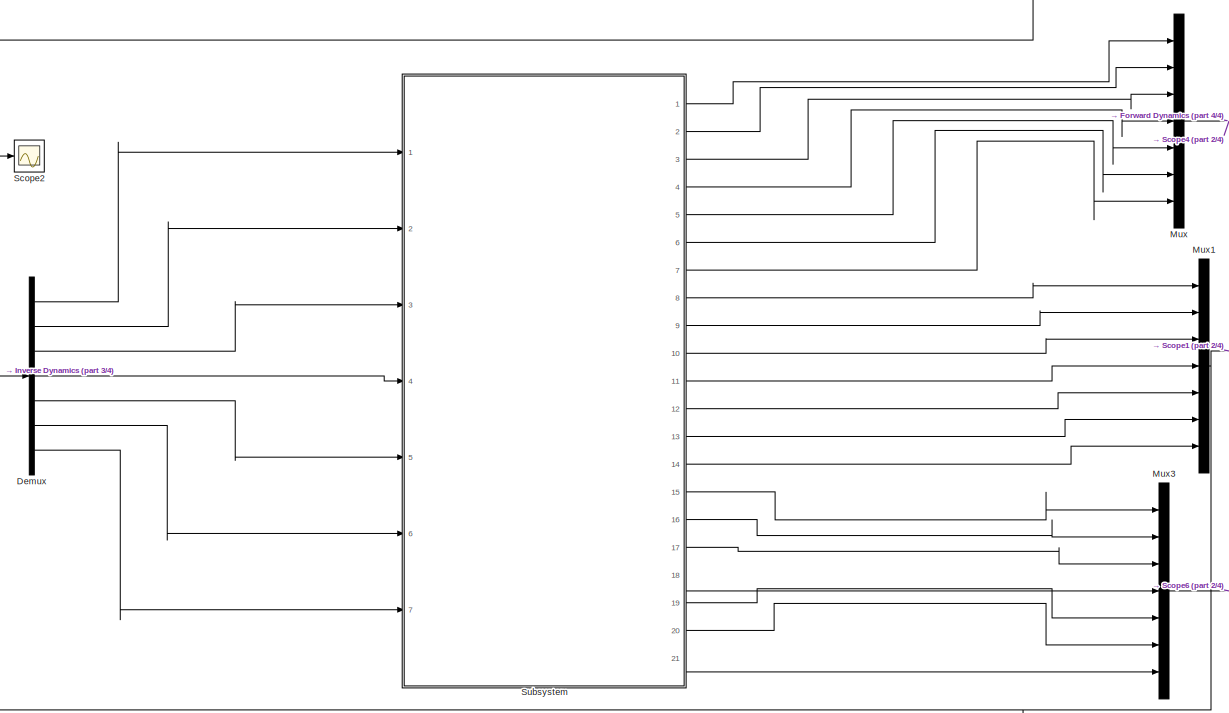
[diagram: root canvas - part 1/4, center side, full height]
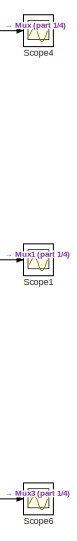
[diagram: root canvas - part 2/4, middle right region]
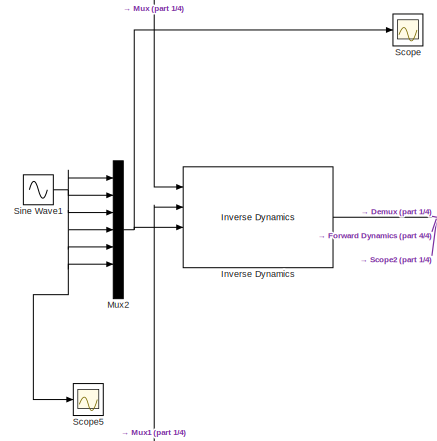
[diagram: root canvas - part 3/4, middle left region]
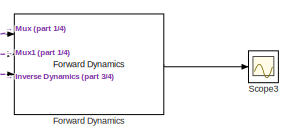
[diagram: root canvas - part 4/4, bottom right region]
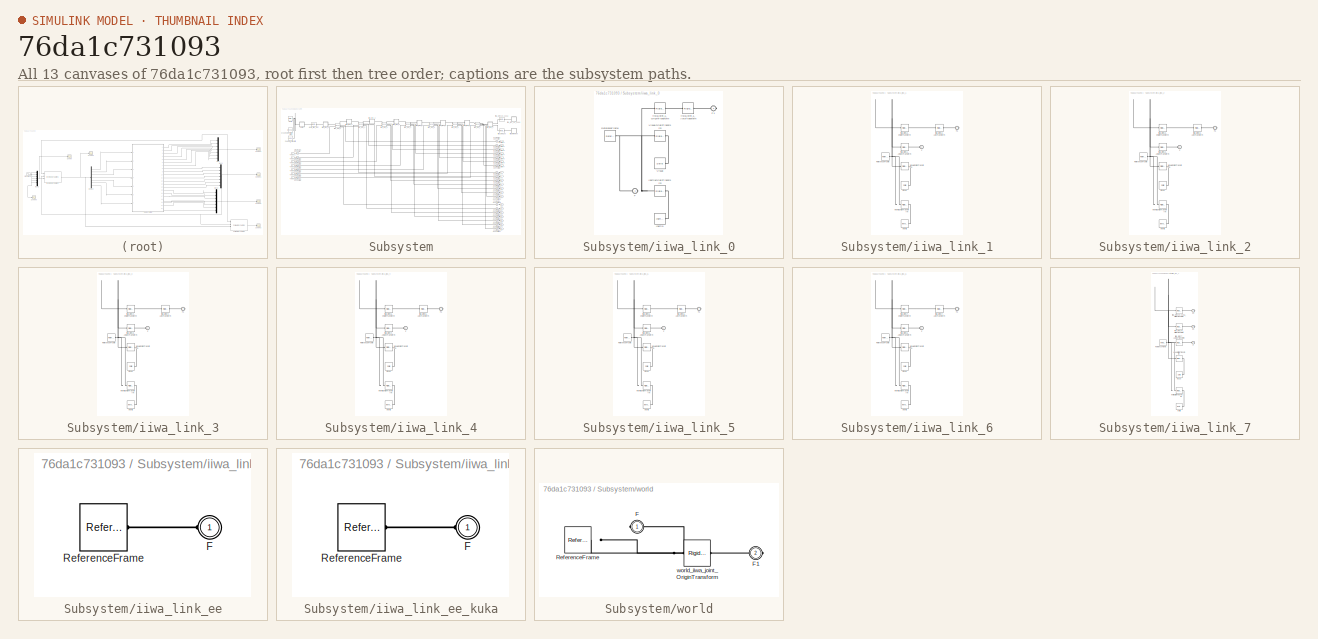
[diagram: thumbnail index - all 13 canvases of the model, root first then tree order]
MODEL slx_76da1c731093
KIND model
CONFIG AbsTol = auto
CONFIG EnableMultiTasking = off
CONFIG FixedStep = 0.01
CONFIG MaxStep = auto
CONFIG MinStep = auto
CONFIG RelTol = 1e-3
CONFIG SampleTimeConstraint = Unconstrained
CONFIG Solver = FixedStepAuto
CONFIG SolverName = FixedStepAuto
CONFIG StartTime = 0.0
CONFIG StopTime = 10.0
BLOCK [Demux] Demux
  DisplayOption = bar
  Outputs = 7
  Ports = [1, 7]
BLOCK [Reference] Forward Dynamics  REF=robotmaniplib/Forward Dynamics
  Ports = [4, 1]
  SourceBlock = robotmaniplib/Forward Dynamics
  SourceProductBaseCode = RO
  SourceProductName = Robotics System Toolbox
  SourceType = Forward Dynamics
BLOCK [Reference] Inverse Dynamics  REF=robotmaniplib/Inverse Dynamics
  Ports = [4, 1]
  SourceBlock = robotmaniplib/Inverse Dynamics
  SourceProductBaseCode = RO
  SourceProductName = Robotics System Toolbox
  SourceType = Inverse Dynamics
BLOCK [Mux] Mux
  DisplayOption = bar
  Inputs = 7
  Ports = [7, 1]
BLOCK [Mux] Mux1
  DisplayOption = bar
  Inputs = 7
  Ports = [7, 1]
BLOCK [Mux] Mux2
  DisplayOption = bar
  Inputs = 7
  Ports = [7, 1]
BLOCK [Mux] Mux3
  DisplayOption = bar
  Inputs = 7
  Ports = [7, 1]
BLOCK [Scope] Scope
  Floating = off
  NumInputPorts = 1
  Ports = [1]
  ScopeSpecificationString = Simulink.scopes.TimeScopeBlockCfg('CurrentConfiguration', extmgr.ConfigurationSet(extmgr.Configuration('Core','General UI',true),extmgr.Configuration('Core','Source UI',true),extmgr.Configuration('Sources','WiredSimulink',true,'DataLoggingVariableName','ScopeData1'),extmgr.Configuration('Visuals','Time Domain',true,'SerializedDisplays',{struct('MinYLimReal','-0.62499','MaxYLimReal','0.625','YLabel...<+1438ch>
BLOCK [Scope] Scope1
  Floating = off
  NumInputPorts = 1
  Ports = [1]
  ScopeSpecificationString = Simulink.scopes.TimeScopeBlockCfg('CurrentConfiguration', extmgr.ConfigurationSet(extmgr.Configuration('Core','General UI',true),extmgr.Configuration('Core','Source UI',true),extmgr.Configuration('Sources','WiredSimulink',true),extmgr.Configuration('Visuals','Time Domain',true,'SerializedDisplays',{struct('MinYLimReal','-0.025','MaxYLimReal','0.225','YLabelReal','','MinYLimMag','0.00000','MaxYLimM...<+1408ch>
BLOCK [Scope] Scope2
  Floating = off
  NumInputPorts = 1
  Ports = [1]
  ScopeSpecificationString = Simulink.scopes.TimeScopeBlockCfg('CurrentConfiguration', extmgr.ConfigurationSet(extmgr.Configuration('Core','General UI',true),extmgr.Configuration('Core','Source UI',true),extmgr.Configuration('Sources','WiredSimulink',true,'DataLoggingVariableName','ScopeData2'),extmgr.Configuration('Visuals','Time Domain',true,'SerializedDisplays',{struct('MinYLimReal','-9.24964','MaxYLimReal','1.24071','YLab...<+1503ch>
BLOCK [Scope] Scope3
  Floating = off
  NumInputPorts = 1
  Ports = [1]
  ScopeSpecificationString = Simulink.scopes.TimeScopeBlockCfg('CurrentConfiguration', extmgr.ConfigurationSet(extmgr.Configuration('Core','General UI',true),extmgr.Configuration('Core','Source UI',true),extmgr.Configuration('Sources','WiredSimulink',true,'DataLoggingVariableName','ScopeData3'),extmgr.Configuration('Visuals','Time Domain',true,'SerializedDisplays',{struct('MinYLimReal','-0.125','MaxYLimReal','0.125','YLabelRe...<+1675ch>
BLOCK [Scope] Scope4
  Floating = off
  NumInputPorts = 1
  Ports = [1]
  ScopeSpecificationString = Simulink.scopes.TimeScopeBlockCfg('CurrentConfiguration', extmgr.ConfigurationSet(extmgr.Configuration('Core','General UI',true),extmgr.Configuration('Core','Source UI',true),extmgr.Configuration('Sources','WiredSimulink',true,'DataLoggingVariableName','ScopeData4'),extmgr.Configuration('Visuals','Time Domain',true,'SerializedDisplays',{struct('MinYLimReal','-0.12566','MaxYLimReal','1.1309','YLabe...<+1450ch>
BLOCK [Scope] Scope5
  Floating = off
  NumInputPorts = 1
  Ports = [1]
  ScopeSpecificationString = Simulink.scopes.TimeScopeBlockCfg('CurrentConfiguration', extmgr.ConfigurationSet(extmgr.Configuration('Core','General UI',true),extmgr.Configuration('Core','Source UI',true),extmgr.Configuration('Sources','WiredSimulink',true,'DataLoggingVariableName','ScopeData5'),extmgr.Configuration('Visuals','Time Domain',true,'SerializedDisplays',{struct('MinYLimReal','-0.125','MaxYLimReal','0.125','YLabelRe...<+1357ch>
BLOCK [Scope] Scope6
  Floating = off
  NumInputPorts = 1
  Ports = [1]
  ScopeSpecificationString = Simulink.scopes.TimeScopeBlockCfg('CurrentConfiguration', extmgr.ConfigurationSet(extmgr.Configuration('Core','General UI',true),extmgr.Configuration('Core','Source UI',true),extmgr.Configuration('Sources','WiredSimulink',true,'DataLoggingVariableName','ScopeData1'),extmgr.Configuration('Visuals','Time Domain',true,'SerializedDisplays',{struct('MinYLimReal','-0.62499','MaxYLimReal','0.625','YLabel...<+1502ch>
BLOCK [Sin] Sine Wave1
  Amplitude = 0.5
  Frequency = 5
  Ports = [0, 1]
  SampleTime = 0
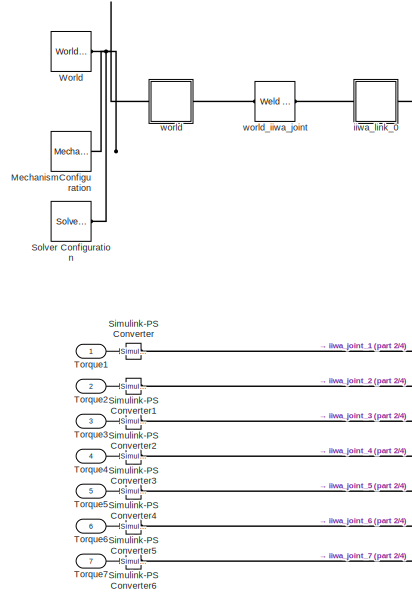
[diagram: Subsystem - part 1/4, top left region]
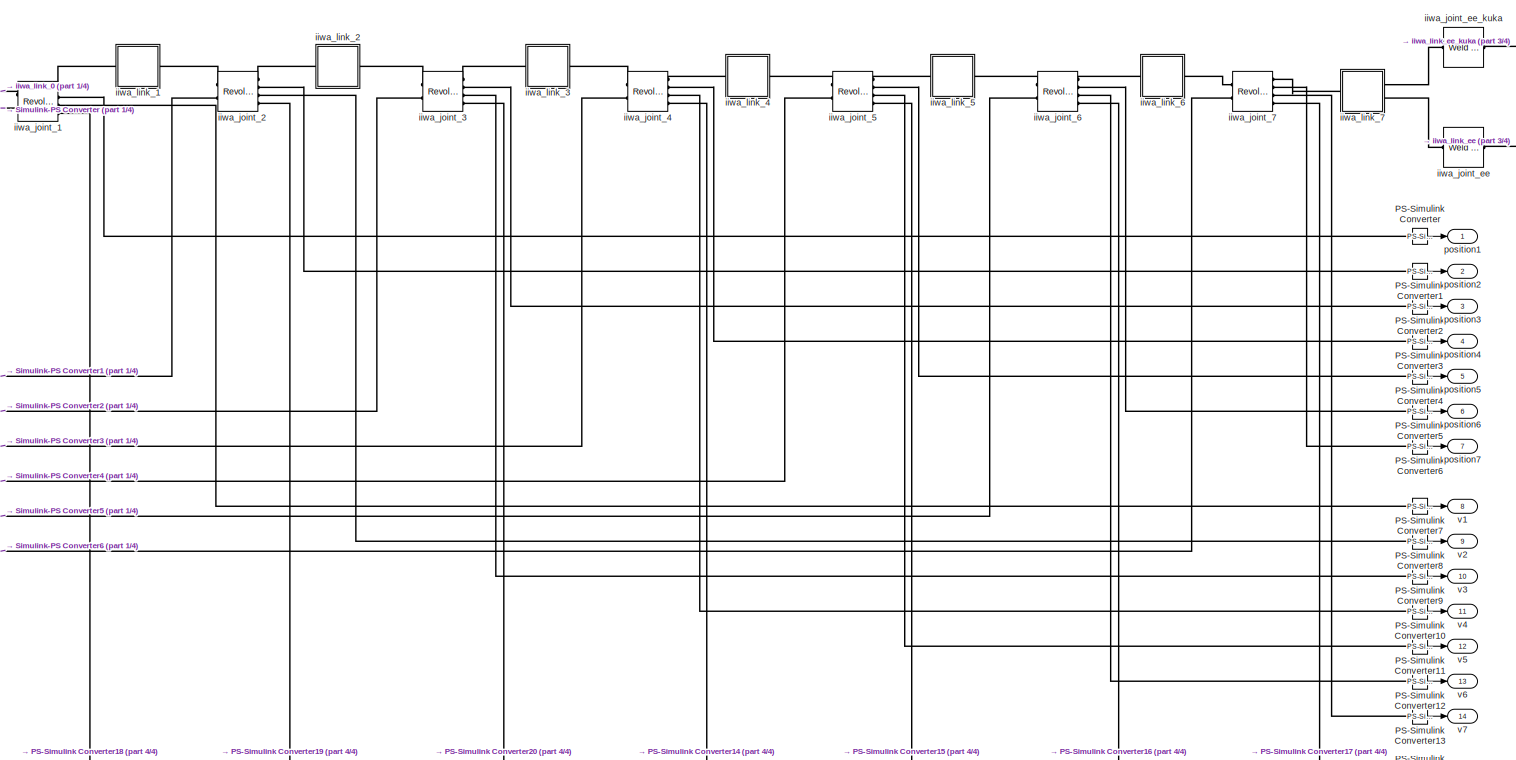
[diagram: Subsystem - part 2/4, full width, middle band]
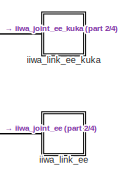
[diagram: Subsystem - part 3/4, top right region]
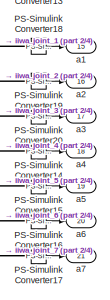
[diagram: Subsystem - part 4/4, bottom right region]
BLOCK [SubSystem] Subsystem
  Ports = [7, 21]
  RequestExecContextInheritance = off
BLOCK [Reference] Subsystem/MechanismConfiguration  REF=sm_lib/Utilities/Mechanism
Configuration
  Ports = [0, 0, 0, 0, 0, 0, 1]
  SourceBlock = sm_lib/Utilities/Mechanism\nConfiguration
  SourceProductBaseCode = MS
  SourceProductName = Simscape Multibody
  SourceType = Mechanism\nConfiguration
BLOCK [Reference] Subsystem/PS-Simulink Converter  REF=nesl_utility/PS-Simulink
Converter
  Ports = [0, 1, 0, 0, 0, 1]
  SourceBlock = nesl_utility/PS-Simulink\nConverter
  SourceProductBaseCode = SS
  SourceProductName = Simscape
  SourceType = PS-Simulink\nConverter
BLOCK [Reference] Subsystem/PS-Simulink Converter1  REF=nesl_utility/PS-Simulink
Converter
  Ports = [0, 1, 0, 0, 0, 1]
  SourceBlock = nesl_utility/PS-Simulink\nConverter
  SourceProductBaseCode = SS
  SourceProductName = Simscape
  SourceType = PS-Simulink\nConverter
BLOCK [Reference] Subsystem/PS-Simulink Converter10  REF=nesl_utility/PS-Simulink
Converter
  Ports = [0, 1, 0, 0, 0, 1]
  SourceBlock = nesl_utility/PS-Simulink\nConverter
  SourceProductBaseCode = SS
  SourceProductName = Simscape
  SourceType = PS-Simulink\nConverter
BLOCK [Reference] Subsystem/PS-Simulink Converter11  REF=nesl_utility/PS-Simulink
Converter
  Ports = [0, 1, 0, 0, 0, 1]
  SourceBlock = nesl_utility/PS-Simulink\nConverter
  SourceProductBaseCode = SS
  SourceProductName = Simscape
  SourceType = PS-Simulink\nConverter
BLOCK [Reference] Subsystem/PS-Simulink Converter12  REF=nesl_utility/PS-Simulink
Converter
  Ports = [0, 1, 0, 0, 0, 1]
  SourceBlock = nesl_utility/PS-Simulink\nConverter
  SourceProductBaseCode = SS
  SourceProductName = Simscape
  SourceType = PS-Simulink\nConverter
BLOCK [Reference] Subsystem/PS-Simulink Converter13  REF=nesl_utility/PS-Simulink
Converter
  Ports = [0, 1, 0, 0, 0, 1]
  SourceBlock = nesl_utility/PS-Simulink\nConverter
  SourceProductBaseCode = SS
  SourceProductName = Simscape
  SourceType = PS-Simulink\nConverter
BLOCK [Reference] Subsystem/PS-Simulink Converter14  REF=nesl_utility/PS-Simulink
Converter
  Ports = [0, 1, 0, 0, 0, 1]
  SourceBlock = nesl_utility/PS-Simulink\nConverter
  SourceProductBaseCode = SS
  SourceProductName = Simscape
  SourceType = PS-Simulink\nConverter
BLOCK [Reference] Subsystem/PS-Simulink Converter15  REF=nesl_utility/PS-Simulink
Converter
  Ports = [0, 1, 0, 0, 0, 1]
  SourceBlock = nesl_utility/PS-Simulink\nConverter
  SourceProductBaseCode = SS
  SourceProductName = Simscape
  SourceType = PS-Simulink\nConverter
BLOCK [Reference] Subsystem/PS-Simulink Converter16  REF=nesl_utility/PS-Simulink
Converter
  Ports = [0, 1, 0, 0, 0, 1]
  SourceBlock = nesl_utility/PS-Simulink\nConverter
  SourceProductBaseCode = SS
  SourceProductName = Simscape
  SourceType = PS-Simulink\nConverter
BLOCK [Reference] Subsystem/PS-Simulink Converter17  REF=nesl_utility/PS-Simulink
Converter
  Ports = [0, 1, 0, 0, 0, 1]
  SourceBlock = nesl_utility/PS-Simulink\nConverter
  SourceProductBaseCode = SS
  SourceProductName = Simscape
  SourceType = PS-Simulink\nConverter
BLOCK [Reference] Subsystem/PS-Simulink Converter18  REF=nesl_utility/PS-Simulink
Converter
  Ports = [0, 1, 0, 0, 0, 1]
  SourceBlock = nesl_utility/PS-Simulink\nConverter
  SourceProductBaseCode = SS
  SourceProductName = Simscape
  SourceType = PS-Simulink\nConverter
BLOCK [Reference] Subsystem/PS-Simulink Converter19  REF=nesl_utility/PS-Simulink
Converter
  Ports = [0, 1, 0, 0, 0, 1]
  SourceBlock = nesl_utility/PS-Simulink\nConverter
  SourceProductBaseCode = SS
  SourceProductName = Simscape
  SourceType = PS-Simulink\nConverter
BLOCK [Reference] Subsystem/PS-Simulink Converter2  REF=nesl_utility/PS-Simulink
Converter
  Ports = [0, 1, 0, 0, 0, 1]
  SourceBlock = nesl_utility/PS-Simulink\nConverter
  SourceProductBaseCode = SS
  SourceProductName = Simscape
  SourceType = PS-Simulink\nConverter
BLOCK [Reference] Subsystem/PS-Simulink Converter20  REF=nesl_utility/PS-Simulink
Converter
  Ports = [0, 1, 0, 0, 0, 1]
  SourceBlock = nesl_utility/PS-Simulink\nConverter
  SourceProductBaseCode = SS
  SourceProductName = Simscape
  SourceType = PS-Simulink\nConverter
BLOCK [Reference] Subsystem/PS-Simulink Converter3  REF=nesl_utility/PS-Simulink
Converter
  Ports = [0, 1, 0, 0, 0, 1]
  SourceBlock = nesl_utility/PS-Simulink\nConverter
  SourceProductBaseCode = SS
  SourceProductName = Simscape
  SourceType = PS-Simulink\nConverter
BLOCK [Reference] Subsystem/PS-Simulink Converter4  REF=nesl_utility/PS-Simulink
Converter
  Ports = [0, 1, 0, 0, 0, 1]
  SourceBlock = nesl_utility/PS-Simulink\nConverter
  SourceProductBaseCode = SS
  SourceProductName = Simscape
  SourceType = PS-Simulink\nConverter
BLOCK [Reference] Subsystem/PS-Simulink Converter5  REF=nesl_utility/PS-Simulink
Converter
  Ports = [0, 1, 0, 0, 0, 1]
  SourceBlock = nesl_utility/PS-Simulink\nConverter
  SourceProductBaseCode = SS
  SourceProductName = Simscape
  SourceType = PS-Simulink\nConverter
BLOCK [Reference] Subsystem/PS-Simulink Converter6  REF=nesl_utility/PS-Simulink
Converter
  Ports = [0, 1, 0, 0, 0, 1]
  SourceBlock = nesl_utility/PS-Simulink\nConverter
  SourceProductBaseCode = SS
  SourceProductName = Simscape
  SourceType = PS-Simulink\nConverter
BLOCK [Reference] Subsystem/PS-Simulink Converter7  REF=nesl_utility/PS-Simulink
Converter
  Ports = [0, 1, 0, 0, 0, 1]
  SourceBlock = nesl_utility/PS-Simulink\nConverter
  SourceProductBaseCode = SS
  SourceProductName = Simscape
  SourceType = PS-Simulink\nConverter
BLOCK [Reference] Subsystem/PS-Simulink Converter8  REF=nesl_utility/PS-Simulink
Converter
  Ports = [0, 1, 0, 0, 0, 1]
  SourceBlock = nesl_utility/PS-Simulink\nConverter
  SourceProductBaseCode = SS
  SourceProductName = Simscape
  SourceType = PS-Simulink\nConverter
BLOCK [Reference] Subsystem/PS-Simulink Converter9  REF=nesl_utility/PS-Simulink
Converter
  Ports = [0, 1, 0, 0, 0, 1]
  SourceBlock = nesl_utility/PS-Simulink\nConverter
  SourceProductBaseCode = SS
  SourceProductName = Simscape
  SourceType = PS-Simulink\nConverter
BLOCK [Reference] Subsystem/Simulink-PS Converter  REF=nesl_utility/Simulink-PS
Converter
  Ports = [1, 0, 0, 0, 0, 0, 1]
  SourceBlock = nesl_utility/Simulink-PS\nConverter
  SourceProductBaseCode = SS
  SourceProductName = Simscape
  SourceType = Simulink-PS\nConverter
BLOCK [Reference] Subsystem/Simulink-PS Converter1  REF=nesl_utility/Simulink-PS
Converter
  Ports = [1, 0, 0, 0, 0, 0, 1]
  SourceBlock = nesl_utility/Simulink-PS\nConverter
  SourceProductBaseCode = SS
  SourceProductName = Simscape
  SourceType = Simulink-PS\nConverter
BLOCK [Reference] Subsystem/Simulink-PS Converter2  REF=nesl_utility/Simulink-PS
Converter
  Ports = [1, 0, 0, 0, 0, 0, 1]
  SourceBlock = nesl_utility/Simulink-PS\nConverter
  SourceProductBaseCode = SS
  SourceProductName = Simscape
  SourceType = Simulink-PS\nConverter
BLOCK [Reference] Subsystem/Simulink-PS Converter3  REF=nesl_utility/Simulink-PS
Converter
  Ports = [1, 0, 0, 0, 0, 0, 1]
  SourceBlock = nesl_utility/Simulink-PS\nConverter
  SourceProductBaseCode = SS
  SourceProductName = Simscape
  SourceType = Simulink-PS\nConverter
BLOCK [Reference] Subsystem/Simulink-PS Converter4  REF=nesl_utility/Simulink-PS
Converter
  Ports = [1, 0, 0, 0, 0, 0, 1]
  SourceBlock = nesl_utility/Simulink-PS\nConverter
  SourceProductBaseCode = SS
  SourceProductName = Simscape
  SourceType = Simulink-PS\nConverter
BLOCK [Reference] Subsystem/Simulink-PS Converter5  REF=nesl_utility/Simulink-PS
Converter
  Ports = [1, 0, 0, 0, 0, 0, 1]
  SourceBlock = nesl_utility/Simulink-PS\nConverter
  SourceProductBaseCode = SS
  SourceProductName = Simscape
  SourceType = Simulink-PS\nConverter
BLOCK [Reference] Subsystem/Simulink-PS Converter6  REF=nesl_utility/Simulink-PS
Converter
  Ports = [1, 0, 0, 0, 0, 0, 1]
  SourceBlock = nesl_utility/Simulink-PS\nConverter
  SourceProductBaseCode = SS
  SourceProductName = Simscape
  SourceType = Simulink-PS\nConverter
BLOCK [Reference] Subsystem/Solver Configuration  REF=nesl_utility/Solver
Configuration
  Ports = [0, 0, 0, 0, 0, 0, 1]
  SourceBlock = nesl_utility/Solver\nConfiguration
  SourceProductBaseCode = SS
  SourceProductName = Simscape
  SourceType = Solver\nConfiguration
BLOCK [Inport] Subsystem/Torque1
  IconDisplay = Port number
BLOCK [Inport] Subsystem/Torque2
  IconDisplay = Port number
  Port = 2
BLOCK [Inport] Subsystem/Torque3
  IconDisplay = Port number
  Port = 3
BLOCK [Inport] Subsystem/Torque4
  IconDisplay = Port number
  Port = 4
BLOCK [Inport] Subsystem/Torque5
  IconDisplay = Port number
  Port = 5
BLOCK [Inport] Subsystem/Torque6
  IconDisplay = Port number
  Port = 6
BLOCK [Inport] Subsystem/Torque7
  IconDisplay = Port number
  Port = 7
BLOCK [Reference] Subsystem/World  REF=sm_lib/Frames and
Transforms/World Frame
  Ports = [0, 0, 0, 0, 0, 0, 1]
  SourceBlock = sm_lib/Frames and\nTransforms/World Frame
  SourceProductBaseCode = MS
  SourceProductName = Simscape Multibody
  SourceType = World Frame
BLOCK [Outport] Subsystem/a1
  IconDisplay = Port number
  Port = 15
BLOCK [Outport] Subsystem/a2
  IconDisplay = Port number
  Port = 16
BLOCK [Outport] Subsystem/a3
  IconDisplay = Port number
  Port = 17
BLOCK [Outport] Subsystem/a4
  IconDisplay = Port number
  Port = 18
BLOCK [Outport] Subsystem/a5
  IconDisplay = Port number
  Port = 19
BLOCK [Outport] Subsystem/a6
  IconDisplay = Port number
  Port = 20
BLOCK [Outport] Subsystem/a7
  IconDisplay = Port number
  Port = 21
BLOCK [Reference] Subsystem/iiwa_joint_1  REF=sm_lib/Joints/Revolute Joint
  Ports = [0, 0, 0, 0, 0, 2, 4]
  SourceBlock = sm_lib/Joints/Revolute Joint
  SourceProductBaseCode = MS
  SourceProductName = Simscape Multibody
  SourceType = Revolute Joint
BLOCK [Reference] Subsystem/iiwa_joint_2  REF=sm_lib/Joints/Revolute Joint
  Ports = [0, 0, 0, 0, 0, 2, 4]
  SourceBlock = sm_lib/Joints/Revolute Joint
  SourceProductBaseCode = MS
  SourceProductName = Simscape Multibody
  SourceType = Revolute Joint
BLOCK [Reference] Subsystem/iiwa_joint_3  REF=sm_lib/Joints/Revolute Joint
  Ports = [0, 0, 0, 0, 0, 2, 4]
  SourceBlock = sm_lib/Joints/Revolute Joint
  SourceProductBaseCode = MS
  SourceProductName = Simscape Multibody
  SourceType = Revolute Joint
BLOCK [Reference] Subsystem/iiwa_joint_4  REF=sm_lib/Joints/Revolute Joint
  Ports = [0, 0, 0, 0, 0, 2, 4]
  SourceBlock = sm_lib/Joints/Revolute Joint
  SourceProductBaseCode = MS
  SourceProductName = Simscape Multibody
  SourceType = Revolute Joint
BLOCK [Reference] Subsystem/iiwa_joint_5  REF=sm_lib/Joints/Revolute Joint
  Ports = [0, 0, 0, 0, 0, 2, 4]
  SourceBlock = sm_lib/Joints/Revolute Joint
  SourceProductBaseCode = MS
  SourceProductName = Simscape Multibody
  SourceType = Revolute Joint
BLOCK [Reference] Subsystem/iiwa_joint_6  REF=sm_lib/Joints/Revolute Joint
  Ports = [0, 0, 0, 0, 0, 2, 4]
  SourceBlock = sm_lib/Joints/Revolute Joint
  SourceProductBaseCode = MS
  SourceProductName = Simscape Multibody
  SourceType = Revolute Joint
BLOCK [Reference] Subsystem/iiwa_joint_7  REF=sm_lib/Joints/Revolute Joint
  Ports = [0, 0, 0, 0, 0, 2, 4]
  SourceBlock = sm_lib/Joints/Revolute Joint
  SourceProductBaseCode = MS
  SourceProductName = Simscape Multibody
  SourceType = Revolute Joint
BLOCK [Reference] Subsystem/iiwa_joint_ee  REF=sm_lib/Joints/Weld Joint
  Ports = [0, 0, 0, 0, 0, 1, 1]
  SourceBlock = sm_lib/Joints/Weld Joint
  SourceProductBaseCode = MS
  SourceProductName = Simscape Multibody
  SourceType = Weld Joint
BLOCK [Reference] Subsystem/iiwa_joint_ee_kuka  REF=sm_lib/Joints/Weld Joint
  Ports = [0, 0, 0, 0, 0, 1, 1]
  SourceBlock = sm_lib/Joints/Weld Joint
  SourceProductBaseCode = MS
  SourceProductName = Simscape Multibody
  SourceType = Weld Joint
BLOCK [SubSystem] Subsystem/iiwa_link_0
  Ports = [0, 0, 0, 0, 0, 1, 1]
  RequestExecContextInheritance = off
BLOCK [PMIOPort] Subsystem/iiwa_link_0/F
  Side = Left
BLOCK [PMIOPort] Subsystem/iiwa_link_0/F1
  Port = 2
  Side = Right
BLOCK [Reference] Subsystem/iiwa_link_0/Inertia  REF=sm_lib/Body Elements/Inertia
  Ports = [0, 0, 0, 0, 0, 0, 1]
  SourceBlock = sm_lib/Body Elements/Inertia
  SourceProductBaseCode = MS
  SourceProductName = Simscape Multibody
  SourceType = Inertia
BLOCK [Reference] Subsystem/iiwa_link_0/InertiaOriginTransform  REF=sm_lib/Frames and
Transforms/Rigid
Transform
  Ports = [0, 0, 0, 0, 0, 1, 1]
  SourceBlock = sm_lib/Frames and\nTransforms/Rigid\nTransform
  SourceProductBaseCode = MS
  SourceProductName = Simscape Multibody
  SourceType = Rigid\nTransform
BLOCK [Reference] Subsystem/iiwa_link_0/ReferenceFrame  REF=sm_lib/Frames and
Transforms/Reference
Frame
  Ports = [0, 0, 0, 0, 0, 0, 1]
  SourceBlock = sm_lib/Frames and\nTransforms/Reference\nFrame
  SourceProductBaseCode = MS
  SourceProductName = Simscape Multibody
  SourceType = Reference\nFrame
BLOCK [Reference] Subsystem/iiwa_link_0/Visual  REF=sm_lib/Body Elements/Solid
  Ports = [0, 0, 0, 0, 0, 0, 1]
  SourceBlock = sm_lib/Body Elements/Solid
  SourceProductBaseCode = MS
  SourceProductName = Simscape Multibody
  SourceType = File Solid
BLOCK [Reference] Subsystem/iiwa_link_0/VisualOriginTransform  REF=sm_lib/Frames and
Transforms/Rigid
Transform
  Ports = [0, 0, 0, 0, 0, 1, 1]
  SourceBlock = sm_lib/Frames and\nTransforms/Rigid\nTransform
  SourceProductBaseCode = MS
  SourceProductName = Simscape Multibody
  SourceType = Rigid\nTransform
BLOCK [Reference] Subsystem/iiwa_link_0/iiwa_joint_1_AxisTransform  REF=sm_lib/Frames and
Transforms/Rigid
Transform
  Ports = [0, 0, 0, 0, 0, 1, 1]
  SourceBlock = sm_lib/Frames and\nTransforms/Rigid\nTransform
  SourceProductBaseCode = MS
  SourceProductName = Simscape Multibody
  SourceType = Rigid\nTransform
BLOCK [Reference] Subsystem/iiwa_link_0/iiwa_joint_1_OriginTransform  REF=sm_lib/Frames and
Transforms/Rigid
Transform
  Ports = [0, 0, 0, 0, 0, 1, 1]
  SourceBlock = sm_lib/Frames and\nTransforms/Rigid\nTransform
  SourceProductBaseCode = MS
  SourceProductName = Simscape Multibody
  SourceType = Rigid\nTransform
BLOCK [SubSystem] Subsystem/iiwa_link_1
  Ports = [0, 0, 0, 0, 0, 1, 1]
  RequestExecContextInheritance = off
BLOCK [PMIOPort] Subsystem/iiwa_link_1/F
  Side = Left
BLOCK [PMIOPort] Subsystem/iiwa_link_1/F1
  Port = 2
  Side = Right
BLOCK [Reference] Subsystem/iiwa_link_1/Inertia  REF=sm_lib/Body Elements/Inertia
  Ports = [0, 0, 0, 0, 0, 0, 1]
  SourceBlock = sm_lib/Body Elements/Inertia
  SourceProductBaseCode = MS
  SourceProductName = Simscape Multibody
  SourceType = Inertia
BLOCK [Reference] Subsystem/iiwa_link_1/InertiaOriginTransform  REF=sm_lib/Frames and
Transforms/Rigid
Transform
  Ports = [0, 0, 0, 0, 0, 1, 1]
  SourceBlock = sm_lib/Frames and\nTransforms/Rigid\nTransform
  SourceProductBaseCode = MS
  SourceProductName = Simscape Multibody
  SourceType = Rigid\nTransform
BLOCK [Reference] Subsystem/iiwa_link_1/ReferenceFrame  REF=sm_lib/Frames and
Transforms/Reference
Frame
  Ports = [0, 0, 0, 0, 0, 0, 1]
  SourceBlock = sm_lib/Frames and\nTransforms/Reference\nFrame
  SourceProductBaseCode = MS
  SourceProductName = Simscape Multibody
  SourceType = Reference\nFrame
BLOCK [Reference] Subsystem/iiwa_link_1/Visual  REF=sm_lib/Body Elements/Solid
  Ports = [0, 0, 0, 0, 0, 0, 1]
  SourceBlock = sm_lib/Body Elements/Solid
  SourceProductBaseCode = MS
  SourceProductName = Simscape Multibody
  SourceType = File Solid
BLOCK [Reference] Subsystem/iiwa_link_1/VisualOriginTransform  REF=sm_lib/Frames and
Transforms/Rigid
Transform
  Ports = [0, 0, 0, 0, 0, 1, 1]
  SourceBlock = sm_lib/Frames and\nTransforms/Rigid\nTransform
  SourceProductBaseCode = MS
  SourceProductName = Simscape Multibody
  SourceType = Rigid\nTransform
BLOCK [Reference] Subsystem/iiwa_link_1/iiwa_joint_1_AxisInvTransform  REF=sm_lib/Frames and
Transforms/Rigid
Transform
  Ports = [0, 0, 0, 0, 0, 1, 1]
  SourceBlock = sm_lib/Frames and\nTransforms/Rigid\nTransform
  SourceProductBaseCode = MS
  SourceProductName = Simscape Multibody
  SourceType = Rigid\nTransform
BLOCK [Reference] Subsystem/iiwa_link_1/iiwa_joint_2_AxisTransform  REF=sm_lib/Frames and
Transforms/Rigid
Transform
  Ports = [0, 0, 0, 0, 0, 1, 1]
  SourceBlock = sm_lib/Frames and\nTransforms/Rigid\nTransform
  SourceProductBaseCode = MS
  SourceProductName = Simscape Multibody
  SourceType = Rigid\nTransform
BLOCK [Reference] Subsystem/iiwa_link_1/iiwa_joint_2_OriginTransform  REF=sm_lib/Frames and
Transforms/Rigid
Transform
  Ports = [0, 0, 0, 0, 0, 1, 1]
  SourceBlock = sm_lib/Frames and\nTransforms/Rigid\nTransform
  SourceProductBaseCode = MS
  SourceProductName = Simscape Multibody
  SourceType = Rigid\nTransform
BLOCK [SubSystem] Subsystem/iiwa_link_2
  Ports = [0, 0, 0, 0, 0, 1, 1]
  RequestExecContextInheritance = off
BLOCK [PMIOPort] Subsystem/iiwa_link_2/F
  Side = Left
BLOCK [PMIOPort] Subsystem/iiwa_link_2/F1
  Port = 2
  Side = Right
BLOCK [Reference] Subsystem/iiwa_link_2/Inertia  REF=sm_lib/Body Elements/Inertia
  Ports = [0, 0, 0, 0, 0, 0, 1]
  SourceBlock = sm_lib/Body Elements/Inertia
  SourceProductBaseCode = MS
  SourceProductName = Simscape Multibody
  SourceType = Inertia
BLOCK [Reference] Subsystem/iiwa_link_2/InertiaOriginTransform  REF=sm_lib/Frames and
Transforms/Rigid
Transform
  Ports = [0, 0, 0, 0, 0, 1, 1]
  SourceBlock = sm_lib/Frames and\nTransforms/Rigid\nTransform
  SourceProductBaseCode = MS
  SourceProductName = Simscape Multibody
  SourceType = Rigid\nTransform
BLOCK [Reference] Subsystem/iiwa_link_2/ReferenceFrame  REF=sm_lib/Frames and
Transforms/Reference
Frame
  Ports = [0, 0, 0, 0, 0, 0, 1]
  SourceBlock = sm_lib/Frames and\nTransforms/Reference\nFrame
  SourceProductBaseCode = MS
  SourceProductName = Simscape Multibody
  SourceType = Reference\nFrame
BLOCK [Reference] Subsystem/iiwa_link_2/Visual  REF=sm_lib/Body Elements/Solid
  Ports = [0, 0, 0, 0, 0, 0, 1]
  SourceBlock = sm_lib/Body Elements/Solid
  SourceProductBaseCode = MS
  SourceProductName = Simscape Multibody
  SourceType = File Solid
BLOCK [Reference] Subsystem/iiwa_link_2/VisualOriginTransform  REF=sm_lib/Frames and
Transforms/Rigid
Transform
  Ports = [0, 0, 0, 0, 0, 1, 1]
  SourceBlock = sm_lib/Frames and\nTransforms/Rigid\nTransform
  SourceProductBaseCode = MS
  SourceProductName = Simscape Multibody
  SourceType = Rigid\nTransform
BLOCK [Reference] Subsystem/iiwa_link_2/iiwa_joint_2_AxisInvTransform  REF=sm_lib/Frames and
Transforms/Rigid
Transform
  Ports = [0, 0, 0, 0, 0, 1, 1]
  SourceBlock = sm_lib/Frames and\nTransforms/Rigid\nTransform
  SourceProductBaseCode = MS
  SourceProductName = Simscape Multibody
  SourceType = Rigid\nTransform
BLOCK [Reference] Subsystem/iiwa_link_2/iiwa_joint_3_AxisTransform  REF=sm_lib/Frames and
Transforms/Rigid
Transform
  Ports = [0, 0, 0, 0, 0, 1, 1]
  SourceBlock = sm_lib/Frames and\nTransforms/Rigid\nTransform
  SourceProductBaseCode = MS
  SourceProductName = Simscape Multibody
  SourceType = Rigid\nTransform
BLOCK [Reference] Subsystem/iiwa_link_2/iiwa_joint_3_OriginTransform  REF=sm_lib/Frames and
Transforms/Rigid
Transform
  Ports = [0, 0, 0, 0, 0, 1, 1]
  SourceBlock = sm_lib/Frames and\nTransforms/Rigid\nTransform
  SourceProductBaseCode = MS
  SourceProductName = Simscape Multibody
  SourceType = Rigid\nTransform
BLOCK [SubSystem] Subsystem/iiwa_link_3
  Ports = [0, 0, 0, 0, 0, 1, 1]
  RequestExecContextInheritance = off
BLOCK [PMIOPort] Subsystem/iiwa_link_3/F
  Side = Left
BLOCK [PMIOPort] Subsystem/iiwa_link_3/F1
  Port = 2
  Side = Right
BLOCK [Reference] Subsystem/iiwa_link_3/Inertia  REF=sm_lib/Body Elements/Inertia
  Ports = [0, 0, 0, 0, 0, 0, 1]
  SourceBlock = sm_lib/Body Elements/Inertia
  SourceProductBaseCode = MS
  SourceProductName = Simscape Multibody
  SourceType = Inertia
BLOCK [Reference] Subsystem/iiwa_link_3/InertiaOriginTransform  REF=sm_lib/Frames and
Transforms/Rigid
Transform
  Ports = [0, 0, 0, 0, 0, 1, 1]
  SourceBlock = sm_lib/Frames and\nTransforms/Rigid\nTransform
  SourceProductBaseCode = MS
  SourceProductName = Simscape Multibody
  SourceType = Rigid\nTransform
BLOCK [Reference] Subsystem/iiwa_link_3/ReferenceFrame  REF=sm_lib/Frames and
Transforms/Reference
Frame
  Ports = [0, 0, 0, 0, 0, 0, 1]
  SourceBlock = sm_lib/Frames and\nTransforms/Reference\nFrame
  SourceProductBaseCode = MS
  SourceProductName = Simscape Multibody
  SourceType = Reference\nFrame
BLOCK [Reference] Subsystem/iiwa_link_3/Visual  REF=sm_lib/Body Elements/Solid
  Ports = [0, 0, 0, 0, 0, 0, 1]
  SourceBlock = sm_lib/Body Elements/Solid
  SourceProductBaseCode = MS
  SourceProductName = Simscape Multibody
  SourceType = File Solid
BLOCK [Reference] Subsystem/iiwa_link_3/VisualOriginTransform  REF=sm_lib/Frames and
Transforms/Rigid
Transform
  Ports = [0, 0, 0, 0, 0, 1, 1]
  SourceBlock = sm_lib/Frames and\nTransforms/Rigid\nTransform
  SourceProductBaseCode = MS
  SourceProductName = Simscape Multibody
  SourceType = Rigid\nTransform
BLOCK [Reference] Subsystem/iiwa_link_3/iiwa_joint_3_AxisInvTransform  REF=sm_lib/Frames and
Transforms/Rigid
Transform
  Ports = [0, 0, 0, 0, 0, 1, 1]
  SourceBlock = sm_lib/Frames and\nTransforms/Rigid\nTransform
  SourceProductBaseCode = MS
  SourceProductName = Simscape Multibody
  SourceType = Rigid\nTransform
BLOCK [Reference] Subsystem/iiwa_link_3/iiwa_joint_4_AxisTransform  REF=sm_lib/Frames and
Transforms/Rigid
Transform
  Ports = [0, 0, 0, 0, 0, 1, 1]
  SourceBlock = sm_lib/Frames and\nTransforms/Rigid\nTransform
  SourceProductBaseCode = MS
  SourceProductName = Simscape Multibody
  SourceType = Rigid\nTransform
BLOCK [Reference] Subsystem/iiwa_link_3/iiwa_joint_4_OriginTransform  REF=sm_lib/Frames and
Transforms/Rigid
Transform
  Ports = [0, 0, 0, 0, 0, 1, 1]
  SourceBlock = sm_lib/Frames and\nTransforms/Rigid\nTransform
  SourceProductBaseCode = MS
  SourceProductName = Simscape Multibody
  SourceType = Rigid\nTransform
BLOCK [SubSystem] Subsystem/iiwa_link_4
  Ports = [0, 0, 0, 0, 0, 1, 1]
  RequestExecContextInheritance = off
BLOCK [PMIOPort] Subsystem/iiwa_link_4/F
  Side = Left
BLOCK [PMIOPort] Subsystem/iiwa_link_4/F1
  Port = 2
  Side = Right
BLOCK [Reference] Subsystem/iiwa_link_4/Inertia  REF=sm_lib/Body Elements/Inertia
  Ports = [0, 0, 0, 0, 0, 0, 1]
  SourceBlock = sm_lib/Body Elements/Inertia
  SourceProductBaseCode = MS
  SourceProductName = Simscape Multibody
  SourceType = Inertia
BLOCK [Reference] Subsystem/iiwa_link_4/InertiaOriginTransform  REF=sm_lib/Frames and
Transforms/Rigid
Transform
  Ports = [0, 0, 0, 0, 0, 1, 1]
  SourceBlock = sm_lib/Frames and\nTransforms/Rigid\nTransform
  SourceProductBaseCode = MS
  SourceProductName = Simscape Multibody
  SourceType = Rigid\nTransform
BLOCK [Reference] Subsystem/iiwa_link_4/ReferenceFrame  REF=sm_lib/Frames and
Transforms/Reference
Frame
  Ports = [0, 0, 0, 0, 0, 0, 1]
  SourceBlock = sm_lib/Frames and\nTransforms/Reference\nFrame
  SourceProductBaseCode = MS
  SourceProductName = Simscape Multibody
  SourceType = Reference\nFrame
BLOCK [Reference] Subsystem/iiwa_link_4/Visual  REF=sm_lib/Body Elements/Solid
  Ports = [0, 0, 0, 0, 0, 0, 1]
  SourceBlock = sm_lib/Body Elements/Solid
  SourceProductBaseCode = MS
  SourceProductName = Simscape Multibody
  SourceType = File Solid
BLOCK [Reference] Subsystem/iiwa_link_4/VisualOriginTransform  REF=sm_lib/Frames and
Transforms/Rigid
Transform
  Ports = [0, 0, 0, 0, 0, 1, 1]
  SourceBlock = sm_lib/Frames and\nTransforms/Rigid\nTransform
  SourceProductBaseCode = MS
  SourceProductName = Simscape Multibody
  SourceType = Rigid\nTransform
BLOCK [Reference] Subsystem/iiwa_link_4/iiwa_joint_4_AxisInvTransform  REF=sm_lib/Frames and
Transforms/Rigid
Transform
  Ports = [0, 0, 0, 0, 0, 1, 1]
  SourceBlock = sm_lib/Frames and\nTransforms/Rigid\nTransform
  SourceProductBaseCode = MS
  SourceProductName = Simscape Multibody
  SourceType = Rigid\nTransform
BLOCK [Reference] Subsystem/iiwa_link_4/iiwa_joint_5_AxisTransform  REF=sm_lib/Frames and
Transforms/Rigid
Transform
  Ports = [0, 0, 0, 0, 0, 1, 1]
  SourceBlock = sm_lib/Frames and\nTransforms/Rigid\nTransform
  SourceProductBaseCode = MS
  SourceProductName = Simscape Multibody
  SourceType = Rigid\nTransform
BLOCK [Reference] Subsystem/iiwa_link_4/iiwa_joint_5_OriginTransform  REF=sm_lib/Frames and
Transforms/Rigid
Transform
  Ports = [0, 0, 0, 0, 0, 1, 1]
  SourceBlock = sm_lib/Frames and\nTransforms/Rigid\nTransform
  SourceProductBaseCode = MS
  SourceProductName = Simscape Multibody
  SourceType = Rigid\nTransform
BLOCK [SubSystem] Subsystem/iiwa_link_5
  Ports = [0, 0, 0, 0, 0, 1, 1]
  RequestExecContextInheritance = off
BLOCK [PMIOPort] Subsystem/iiwa_link_5/F
  Side = Left
BLOCK [PMIOPort] Subsystem/iiwa_link_5/F1
  Port = 2
  Side = Right
BLOCK [Reference] Subsystem/iiwa_link_5/Inertia  REF=sm_lib/Body Elements/Inertia
  Ports = [0, 0, 0, 0, 0, 0, 1]
  SourceBlock = sm_lib/Body Elements/Inertia
  SourceProductBaseCode = MS
  SourceProductName = Simscape Multibody
  SourceType = Inertia
BLOCK [Reference] Subsystem/iiwa_link_5/InertiaOriginTransform  REF=sm_lib/Frames and
Transforms/Rigid
Transform
  Ports = [0, 0, 0, 0, 0, 1, 1]
  SourceBlock = sm_lib/Frames and\nTransforms/Rigid\nTransform
  SourceProductBaseCode = MS
  SourceProductName = Simscape Multibody
  SourceType = Rigid\nTransform
BLOCK [Reference] Subsystem/iiwa_link_5/ReferenceFrame  REF=sm_lib/Frames and
Transforms/Reference
Frame
  Ports = [0, 0, 0, 0, 0, 0, 1]
  SourceBlock = sm_lib/Frames and\nTransforms/Reference\nFrame
  SourceProductBaseCode = MS
  SourceProductName = Simscape Multibody
  SourceType = Reference\nFrame
BLOCK [Reference] Subsystem/iiwa_link_5/Visual  REF=sm_lib/Body Elements/Solid
  Ports = [0, 0, 0, 0, 0, 0, 1]
  SourceBlock = sm_lib/Body Elements/Solid
  SourceProductBaseCode = MS
  SourceProductName = Simscape Multibody
  SourceType = File Solid
BLOCK [Reference] Subsystem/iiwa_link_5/VisualOriginTransform  REF=sm_lib/Frames and
Transforms/Rigid
Transform
  Ports = [0, 0, 0, 0, 0, 1, 1]
  SourceBlock = sm_lib/Frames and\nTransforms/Rigid\nTransform
  SourceProductBaseCode = MS
  SourceProductName = Simscape Multibody
  SourceType = Rigid\nTransform
BLOCK [Reference] Subsystem/iiwa_link_5/iiwa_joint_5_AxisInvTransform  REF=sm_lib/Frames and
Transforms/Rigid
Transform
  Ports = [0, 0, 0, 0, 0, 1, 1]
  SourceBlock = sm_lib/Frames and\nTransforms/Rigid\nTransform
  SourceProductBaseCode = MS
  SourceProductName = Simscape Multibody
  SourceType = Rigid\nTransform
BLOCK [Reference] Subsystem/iiwa_link_5/iiwa_joint_6_AxisTransform  REF=sm_lib/Frames and
Transforms/Rigid
Transform
  Ports = [0, 0, 0, 0, 0, 1, 1]
  SourceBlock = sm_lib/Frames and\nTransforms/Rigid\nTransform
  SourceProductBaseCode = MS
  SourceProductName = Simscape Multibody
  SourceType = Rigid\nTransform
BLOCK [Reference] Subsystem/iiwa_link_5/iiwa_joint_6_OriginTransform  REF=sm_lib/Frames and
Transforms/Rigid
Transform
  Ports = [0, 0, 0, 0, 0, 1, 1]
  SourceBlock = sm_lib/Frames and\nTransforms/Rigid\nTransform
  SourceProductBaseCode = MS
  SourceProductName = Simscape Multibody
  SourceType = Rigid\nTransform
BLOCK [SubSystem] Subsystem/iiwa_link_6
  Ports = [0, 0, 0, 0, 0, 1, 1]
  RequestExecContextInheritance = off
BLOCK [PMIOPort] Subsystem/iiwa_link_6/F
  Side = Left
BLOCK [PMIOPort] Subsystem/iiwa_link_6/F1
  Port = 2
  Side = Right
BLOCK [Reference] Subsystem/iiwa_link_6/Inertia  REF=sm_lib/Body Elements/Inertia
  Ports = [0, 0, 0, 0, 0, 0, 1]
  SourceBlock = sm_lib/Body Elements/Inertia
  SourceProductBaseCode = MS
  SourceProductName = Simscape Multibody
  SourceType = Inertia
BLOCK [Reference] Subsystem/iiwa_link_6/InertiaOriginTransform  REF=sm_lib/Frames and
Transforms/Rigid
Transform
  Ports = [0, 0, 0, 0, 0, 1, 1]
  SourceBlock = sm_lib/Frames and\nTransforms/Rigid\nTransform
  SourceProductBaseCode = MS
  SourceProductName = Simscape Multibody
  SourceType = Rigid\nTransform
BLOCK [Reference] Subsystem/iiwa_link_6/ReferenceFrame  REF=sm_lib/Frames and
Transforms/Reference
Frame
  Ports = [0, 0, 0, 0, 0, 0, 1]
  SourceBlock = sm_lib/Frames and\nTransforms/Reference\nFrame
  SourceProductBaseCode = MS
  SourceProductName = Simscape Multibody
  SourceType = Reference\nFrame
BLOCK [Reference] Subsystem/iiwa_link_6/Visual  REF=sm_lib/Body Elements/Solid
  Ports = [0, 0, 0, 0, 0, 0, 1]
  SourceBlock = sm_lib/Body Elements/Solid
  SourceProductBaseCode = MS
  SourceProductName = Simscape Multibody
  SourceType = File Solid
BLOCK [Reference] Subsystem/iiwa_link_6/VisualOriginTransform  REF=sm_lib/Frames and
Transforms/Rigid
Transform
  Ports = [0, 0, 0, 0, 0, 1, 1]
  SourceBlock = sm_lib/Frames and\nTransforms/Rigid\nTransform
  SourceProductBaseCode = MS
  SourceProductName = Simscape Multibody
  SourceType = Rigid\nTransform
BLOCK [Reference] Subsystem/iiwa_link_6/iiwa_joint_6_AxisInvTransform  REF=sm_lib/Frames and
Transforms/Rigid
Transform
  Ports = [0, 0, 0, 0, 0, 1, 1]
  SourceBlock = sm_lib/Frames and\nTransforms/Rigid\nTransform
  SourceProductBaseCode = MS
  SourceProductName = Simscape Multibody
  SourceType = Rigid\nTransform
BLOCK [Reference] Subsystem/iiwa_link_6/iiwa_joint_7_AxisTransform  REF=sm_lib/Frames and
Transforms/Rigid
Transform
  Ports = [0, 0, 0, 0, 0, 1, 1]
  SourceBlock = sm_lib/Frames and\nTransforms/Rigid\nTransform
  SourceProductBaseCode = MS
  SourceProductName = Simscape Multibody
  SourceType = Rigid\nTransform
BLOCK [Reference] Subsystem/iiwa_link_6/iiwa_joint_7_OriginTransform  REF=sm_lib/Frames and
Transforms/Rigid
Transform
  Ports = [0, 0, 0, 0, 0, 1, 1]
  SourceBlock = sm_lib/Frames and\nTransforms/Rigid\nTransform
  SourceProductBaseCode = MS
  SourceProductName = Simscape Multibody
  SourceType = Rigid\nTransform
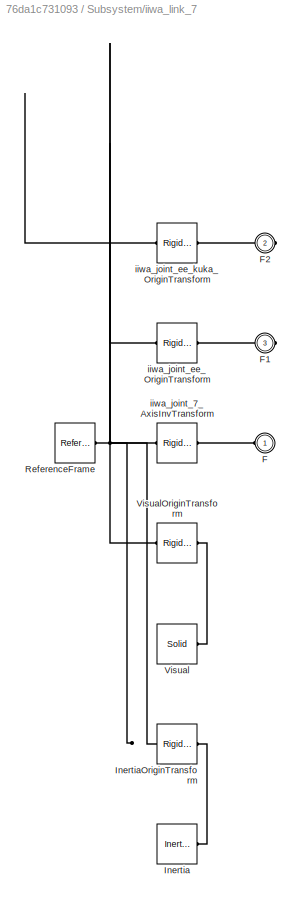
BLOCK [SubSystem] Subsystem/iiwa_link_7
  Ports = [0, 0, 0, 0, 0, 1, 2]
  RequestExecContextInheritance = off
BLOCK [PMIOPort] Subsystem/iiwa_link_7/F
  Side = Left
BLOCK [PMIOPort] Subsystem/iiwa_link_7/F1
  Port = 3
  Side = Right
BLOCK [PMIOPort] Subsystem/iiwa_link_7/F2
  Port = 2
  Side = Right
BLOCK [Reference] Subsystem/iiwa_link_7/Inertia  REF=sm_lib/Body Elements/Inertia
  Ports = [0, 0, 0, 0, 0, 0, 1]
  SourceBlock = sm_lib/Body Elements/Inertia
  SourceProductBaseCode = MS
  SourceProductName = Simscape Multibody
  SourceType = Inertia
BLOCK [Reference] Subsystem/iiwa_link_7/InertiaOriginTransform  REF=sm_lib/Frames and
Transforms/Rigid
Transform
  Ports = [0, 0, 0, 0, 0, 1, 1]
  SourceBlock = sm_lib/Frames and\nTransforms/Rigid\nTransform
  SourceProductBaseCode = MS
  SourceProductName = Simscape Multibody
  SourceType = Rigid\nTransform
BLOCK [Reference] Subsystem/iiwa_link_7/ReferenceFrame  REF=sm_lib/Frames and
Transforms/Reference
Frame
  Ports = [0, 0, 0, 0, 0, 0, 1]
  SourceBlock = sm_lib/Frames and\nTransforms/Reference\nFrame
  SourceProductBaseCode = MS
  SourceProductName = Simscape Multibody
  SourceType = Reference\nFrame
BLOCK [Reference] Subsystem/iiwa_link_7/Visual  REF=sm_lib/Body Elements/Solid
  Ports = [0, 0, 0, 0, 0, 0, 1]
  SourceBlock = sm_lib/Body Elements/Solid
  SourceProductBaseCode = MS
  SourceProductName = Simscape Multibody
  SourceType = File Solid
BLOCK [Reference] Subsystem/iiwa_link_7/VisualOriginTransform  REF=sm_lib/Frames and
Transforms/Rigid
Transform
  Ports = [0, 0, 0, 0, 0, 1, 1]
  SourceBlock = sm_lib/Frames and\nTransforms/Rigid\nTransform
  SourceProductBaseCode = MS
  SourceProductName = Simscape Multibody
  SourceType = Rigid\nTransform
BLOCK [Reference] Subsystem/iiwa_link_7/iiwa_joint_7_AxisInvTransform  REF=sm_lib/Frames and
Transforms/Rigid
Transform
  Ports = [0, 0, 0, 0, 0, 1, 1]
  SourceBlock = sm_lib/Frames and\nTransforms/Rigid\nTransform
  SourceProductBaseCode = MS
  SourceProductName = Simscape Multibody
  SourceType = Rigid\nTransform
BLOCK [Reference] Subsystem/iiwa_link_7/iiwa_joint_ee_OriginTransform  REF=sm_lib/Frames and
Transforms/Rigid
Transform
  Ports = [0, 0, 0, 0, 0, 1, 1]
  SourceBlock = sm_lib/Frames and\nTransforms/Rigid\nTransform
  SourceProductBaseCode = MS
  SourceProductName = Simscape Multibody
  SourceType = Rigid\nTransform
BLOCK [Reference] Subsystem/iiwa_link_7/iiwa_joint_ee_kuka_OriginTransform  REF=sm_lib/Frames and
Transforms/Rigid
Transform
  Ports = [0, 0, 0, 0, 0, 1, 1]
  SourceBlock = sm_lib/Frames and\nTransforms/Rigid\nTransform
  SourceProductBaseCode = MS
  SourceProductName = Simscape Multibody
  SourceType = Rigid\nTransform
BLOCK [SubSystem] Subsystem/iiwa_link_ee
  Ports = [0, 0, 0, 0, 0, 1]
  RequestExecContextInheritance = off
BLOCK [PMIOPort] Subsystem/iiwa_link_ee/F
  Side = Left
BLOCK [Reference] Subsystem/iiwa_link_ee/ReferenceFrame  REF=sm_lib/Frames and
Transforms/Reference
Frame
  Ports = [0, 0, 0, 0, 0, 0, 1]
  SourceBlock = sm_lib/Frames and\nTransforms/Reference\nFrame
  SourceProductBaseCode = MS
  SourceProductName = Simscape Multibody
  SourceType = Reference\nFrame
BLOCK [SubSystem] Subsystem/iiwa_link_ee_kuka
  Ports = [0, 0, 0, 0, 0, 1]
  RequestExecContextInheritance = off
BLOCK [PMIOPort] Subsystem/iiwa_link_ee_kuka/F
  Side = Left
BLOCK [Reference] Subsystem/iiwa_link_ee_kuka/ReferenceFrame  REF=sm_lib/Frames and
Transforms/Reference
Frame
  Ports = [0, 0, 0, 0, 0, 0, 1]
  SourceBlock = sm_lib/Frames and\nTransforms/Reference\nFrame
  SourceProductBaseCode = MS
  SourceProductName = Simscape Multibody
  SourceType = Reference\nFrame
BLOCK [Outport] Subsystem/position1
  IconDisplay = Port number
BLOCK [Outport] Subsystem/position2
  IconDisplay = Port number
  Port = 2
BLOCK [Outport] Subsystem/position3
  IconDisplay = Port number
  Port = 3
BLOCK [Outport] Subsystem/position4
  IconDisplay = Port number
  Port = 4
BLOCK [Outport] Subsystem/position5
  IconDisplay = Port number
  Port = 5
BLOCK [Outport] Subsystem/position6
  IconDisplay = Port number
  Port = 6
BLOCK [Outport] Subsystem/position7
  IconDisplay = Port number
  Port = 7
BLOCK [Outport] Subsystem/v1
  IconDisplay = Port number
  Port = 8
BLOCK [Outport] Subsystem/v2
  IconDisplay = Port number
  Port = 9
BLOCK [Outport] Subsystem/v3
  IconDisplay = Port number
  Port = 10
BLOCK [Outport] Subsystem/v4
  IconDisplay = Port number
  Port = 11
BLOCK [Outport] Subsystem/v5
  IconDisplay = Port number
  Port = 12
BLOCK [Outport] Subsystem/v6
  IconDisplay = Port number
  Port = 13
BLOCK [Outport] Subsystem/v7
  IconDisplay = Port number
  Port = 14
BLOCK [SubSystem] Subsystem/world
  Ports = [0, 0, 0, 0, 0, 1, 1]
  RequestExecContextInheritance = off
BLOCK [PMIOPort] Subsystem/world/F
  Side = Left
BLOCK [PMIOPort] Subsystem/world/F1
  Port = 2
  Side = Right
BLOCK [Reference] Subsystem/world/ReferenceFrame  REF=sm_lib/Frames and
Transforms/Reference
Frame
  Ports = [0, 0, 0, 0, 0, 0, 1]
  SourceBlock = sm_lib/Frames and\nTransforms/Reference\nFrame
  SourceProductBaseCode = MS
  SourceProductName = Simscape Multibody
  SourceType = Reference\nFrame
BLOCK [Reference] Subsystem/world/world_iiwa_joint_OriginTransform  REF=sm_lib/Frames and
Transforms/Rigid
Transform
  Ports = [0, 0, 0, 0, 0, 1, 1]
  SourceBlock = sm_lib/Frames and\nTransforms/Rigid\nTransform
  SourceProductBaseCode = MS
  SourceProductName = Simscape Multibody
  SourceType = Rigid\nTransform
BLOCK [Reference] Subsystem/world_iiwa_joint  REF=sm_lib/Joints/Weld Joint
  Ports = [0, 0, 0, 0, 0, 1, 1]
  SourceBlock = sm_lib/Joints/Weld Joint
  SourceProductBaseCode = MS
  SourceProductName = Simscape Multibody
  SourceType = Weld Joint
LINE Demux:1 -> Subsystem:1
LINE Demux:2 -> Subsystem:2
LINE Demux:3 -> Subsystem:3
LINE Demux:4 -> Subsystem:4
LINE Demux:5 -> Subsystem:5
LINE Demux:6 -> Subsystem:6
LINE Demux:7 -> Subsystem:7
LINE Forward Dynamics:1 -> Scope3:1
NET Inverse Dynamics:1 -> Demux:1, Forward Dynamics:3, Scope2:1
NET Mux1:1 -> Forward Dynamics:2, Inverse Dynamics:2, Scope1:1
NET Mux2:1 -> Inverse Dynamics:3, Scope:1
LINE Mux3:1 -> Scope6:1
NET Mux:1 -> Forward Dynamics:1, Inverse Dynamics:1, Scope4:1
NET Sine Wave1:1 -> Mux2:1, Mux2:2, Mux2:3, Mux2:4, Mux2:5, Mux2:6, Scope5:1
LINE Subsystem/PS-Simulink Converter10:1 -> Subsystem/v4:1
LINE Subsystem/PS-Simulink Converter11:1 -> Subsystem/v5:1
LINE Subsystem/PS-Simulink Converter12:1 -> Subsystem/v6:1
LINE Subsystem/PS-Simulink Converter13:1 -> Subsystem/v7:1
LINE Subsystem/PS-Simulink Converter14:1 -> Subsystem/a4:1
LINE Subsystem/PS-Simulink Converter15:1 -> Subsystem/a5:1
LINE Subsystem/PS-Simulink Converter16:1 -> Subsystem/a6:1
LINE Subsystem/PS-Simulink Converter17:1 -> Subsystem/a7:1
LINE Subsystem/PS-Simulink Converter18:1 -> Subsystem/a1:1
LINE Subsystem/PS-Simulink Converter19:1 -> Subsystem/a2:1
LINE Subsystem/PS-Simulink Converter1:1 -> Subsystem/position2:1
LINE Subsystem/PS-Simulink Converter20:1 -> Subsystem/a3:1
LINE Subsystem/PS-Simulink Converter2:1 -> Subsystem/position3:1
LINE Subsystem/PS-Simulink Converter3:1 -> Subsystem/position4:1
LINE Subsystem/PS-Simulink Converter4:1 -> Subsystem/position5:1
LINE Subsystem/PS-Simulink Converter5:1 -> Subsystem/position6:1
LINE Subsystem/PS-Simulink Converter6:1 -> Subsystem/position7:1
LINE Subsystem/PS-Simulink Converter7:1 -> Subsystem/v1:1
LINE Subsystem/PS-Simulink Converter8:1 -> Subsystem/v2:1
LINE Subsystem/PS-Simulink Converter9:1 -> Subsystem/v3:1
LINE Subsystem/PS-Simulink Converter:1 -> Subsystem/position1:1
LINE Subsystem/Torque1:1 -> Subsystem/Simulink-PS Converter:1
LINE Subsystem/Torque2:1 -> Subsystem/Simulink-PS Converter1:1
LINE Subsystem/Torque3:1 -> Subsystem/Simulink-PS Converter2:1
LINE Subsystem/Torque4:1 -> Subsystem/Simulink-PS Converter3:1
LINE Subsystem/Torque5:1 -> Subsystem/Simulink-PS Converter4:1
LINE Subsystem/Torque6:1 -> Subsystem/Simulink-PS Converter5:1
LINE Subsystem/Torque7:1 -> Subsystem/Simulink-PS Converter6:1
LINE Subsystem:1 -> Mux:1
LINE Subsystem:10 -> Mux1:3
LINE Subsystem:11 -> Mux1:4
LINE Subsystem:12 -> Mux1:5
LINE Subsystem:13 -> Mux1:6
LINE Subsystem:14 -> Mux1:7
LINE Subsystem:15 -> Mux3:1
LINE Subsystem:16 -> Mux3:2
LINE Subsystem:17 -> Mux3:3
LINE Subsystem:18 -> Mux3:4
LINE Subsystem:19 -> Mux3:5
LINE Subsystem:2 -> Mux:2
LINE Subsystem:20 -> Mux3:6
LINE Subsystem:21 -> Mux3:7
LINE Subsystem:3 -> Mux:3
LINE Subsystem:4 -> Mux:4
LINE Subsystem:5 -> Mux:5
LINE Subsystem:6 -> Mux:6
LINE Subsystem:7 -> Mux:7
LINE Subsystem:8 -> Mux1:1
LINE Subsystem:9 -> Mux1:2
PNET net1: Subsystem/MechanismConfiguration:RConn1 -- Subsystem/Solver Configuration:RConn1 -- Subsystem/World:RConn1 -- Subsystem/world:LConn1
PLINE Subsystem/PS-Simulink Converter10:LConn1 -- Subsystem/iiwa_joint_4:RConn3
PLINE Subsystem/PS-Simulink Converter11:LConn1 -- Subsystem/iiwa_joint_5:RConn3
PLINE Subsystem/PS-Simulink Converter12:LConn1 -- Subsystem/iiwa_joint_6:RConn3
PLINE Subsystem/PS-Simulink Converter13:LConn1 -- Subsystem/iiwa_joint_7:RConn3
PLINE Subsystem/PS-Simulink Converter14:LConn1 -- Subsystem/iiwa_joint_4:RConn4
PLINE Subsystem/PS-Simulink Converter15:LConn1 -- Subsystem/iiwa_joint_5:RConn4
PLINE Subsystem/PS-Simulink Converter16:LConn1 -- Subsystem/iiwa_joint_6:RConn4
PLINE Subsystem/PS-Simulink Converter17:LConn1 -- Subsystem/iiwa_joint_7:RConn4
PLINE Subsystem/PS-Simulink Converter18:LConn1 -- Subsystem/iiwa_joint_1:RConn4
PLINE Subsystem/PS-Simulink Converter19:LConn1 -- Subsystem/iiwa_joint_2:RConn4
PLINE Subsystem/PS-Simulink Converter1:LConn1 -- Subsystem/iiwa_joint_2:RConn2
PLINE Subsystem/PS-Simulink Converter20:LConn1 -- Subsystem/iiwa_joint_3:RConn4
PLINE Subsystem/PS-Simulink Converter2:LConn1 -- Subsystem/iiwa_joint_3:RConn2
PLINE Subsystem/PS-Simulink Converter3:LConn1 -- Subsystem/iiwa_joint_4:RConn2
PLINE Subsystem/PS-Simulink Converter4:LConn1 -- Subsystem/iiwa_joint_5:RConn2
PLINE Subsystem/PS-Simulink Converter5:LConn1 -- Subsystem/iiwa_joint_6:RConn2
PLINE Subsystem/PS-Simulink Converter6:LConn1 -- Subsystem/iiwa_joint_7:RConn2
PLINE Subsystem/PS-Simulink Converter7:LConn1 -- Subsystem/iiwa_joint_1:RConn3
PLINE Subsystem/PS-Simulink Converter8:LConn1 -- Subsystem/iiwa_joint_2:RConn3
PLINE Subsystem/PS-Simulink Converter9:LConn1 -- Subsystem/iiwa_joint_3:RConn3
PLINE Subsystem/PS-Simulink Converter:LConn1 -- Subsystem/iiwa_joint_1:RConn2
PLINE Subsystem/Simulink-PS Converter1:RConn1 -- Subsystem/iiwa_joint_2:LConn2
PLINE Subsystem/Simulink-PS Converter2:RConn1 -- Subsystem/iiwa_joint_3:LConn2
PLINE Subsystem/Simulink-PS Converter3:RConn1 -- Subsystem/iiwa_joint_4:LConn2
PLINE Subsystem/Simulink-PS Converter4:RConn1 -- Subsystem/iiwa_joint_5:LConn2
PLINE Subsystem/Simulink-PS Converter5:RConn1 -- Subsystem/iiwa_joint_6:LConn2
PLINE Subsystem/Simulink-PS Converter6:RConn1 -- Subsystem/iiwa_joint_7:LConn2
PLINE Subsystem/Simulink-PS Converter:RConn1 -- Subsystem/iiwa_joint_1:LConn2
PLINE Subsystem/iiwa_joint_1:LConn1 -- Subsystem/iiwa_link_0:RConn1
PLINE Subsystem/iiwa_joint_1:RConn1 -- Subsystem/iiwa_link_1:LConn1
PLINE Subsystem/iiwa_joint_2:LConn1 -- Subsystem/iiwa_link_1:RConn1
PLINE Subsystem/iiwa_joint_2:RConn1 -- Subsystem/iiwa_link_2:LConn1
PLINE Subsystem/iiwa_joint_3:LConn1 -- Subsystem/iiwa_link_2:RConn1
PLINE Subsystem/iiwa_joint_3:RConn1 -- Subsystem/iiwa_link_3:LConn1
PLINE Subsystem/iiwa_joint_4:LConn1 -- Subsystem/iiwa_link_3:RConn1
PLINE Subsystem/iiwa_joint_4:RConn1 -- Subsystem/iiwa_link_4:LConn1
PLINE Subsystem/iiwa_joint_5:LConn1 -- Subsystem/iiwa_link_4:RConn1
PLINE Subsystem/iiwa_joint_5:RConn1 -- Subsystem/iiwa_link_5:LConn1
PLINE Subsystem/iiwa_joint_6:LConn1 -- Subsystem/iiwa_link_5:RConn1
PLINE Subsystem/iiwa_joint_6:RConn1 -- Subsystem/iiwa_link_6:LConn1
PLINE Subsystem/iiwa_joint_7:LConn1 -- Subsystem/iiwa_link_6:RConn1
PLINE Subsystem/iiwa_joint_7:RConn1 -- Subsystem/iiwa_link_7:LConn1
PLINE Subsystem/iiwa_joint_ee:LConn1 -- Subsystem/iiwa_link_7:RConn2
PLINE Subsystem/iiwa_joint_ee:RConn1 -- Subsystem/iiwa_link_ee:LConn1
PLINE Subsystem/iiwa_joint_ee_kuka:LConn1 -- Subsystem/iiwa_link_7:RConn1
PLINE Subsystem/iiwa_joint_ee_kuka:RConn1 -- Subsystem/iiwa_link_ee_kuka:LConn1
PLINE Subsystem/iiwa_link_0/F1:RConn1 -- Subsystem/iiwa_link_0/iiwa_joint_1_AxisTransform:RConn1
PNET net2: Subsystem/iiwa_link_0/F:RConn1 -- Subsystem/iiwa_link_0/InertiaOriginTransform:LConn1 -- Subsystem/iiwa_link_0/ReferenceFrame:RConn1 -- Subsystem/iiwa_link_0/VisualOriginTransform:LConn1 -- Subsystem/iiwa_link_0/iiwa_joint_1_OriginTransform:LConn1
PLINE Subsystem/iiwa_link_0/Inertia:RConn1 -- Subsystem/iiwa_link_0/InertiaOriginTransform:RConn1
PLINE Subsystem/iiwa_link_0/Visual:RConn1 -- Subsystem/iiwa_link_0/VisualOriginTransform:RConn1
PLINE Subsystem/iiwa_link_0/iiwa_joint_1_AxisTransform:LConn1 -- Subsystem/iiwa_link_0/iiwa_joint_1_OriginTransform:RConn1
PLINE Subsystem/iiwa_link_0:LConn1 -- Subsystem/world_iiwa_joint:RConn1
PLINE Subsystem/iiwa_link_1/F1:RConn1 -- Subsystem/iiwa_link_1/iiwa_joint_2_AxisTransform:RConn1
PLINE Subsystem/iiwa_link_1/F:RConn1 -- Subsystem/iiwa_link_1/iiwa_joint_1_AxisInvTransform:RConn1
PLINE Subsystem/iiwa_link_1/Inertia:RConn1 -- Subsystem/iiwa_link_1/InertiaOriginTransform:RConn1
PNET net3: Subsystem/iiwa_link_1/InertiaOriginTransform:LConn1 -- Subsystem/iiwa_link_1/ReferenceFrame:RConn1 -- Subsystem/iiwa_link_1/VisualOriginTransform:LConn1 -- Subsystem/iiwa_link_1/iiwa_joint_1_AxisInvTransform:LConn1 -- Subsystem/iiwa_link_1/iiwa_joint_2_OriginTransform:LConn1
PLINE Subsystem/iiwa_link_1/Visual:RConn1 -- Subsystem/iiwa_link_1/VisualOriginTransform:RConn1
PLINE Subsystem/iiwa_link_1/iiwa_joint_2_AxisTransform:LConn1 -- Subsystem/iiwa_link_1/iiwa_joint_2_OriginTransform:RConn1
PLINE Subsystem/iiwa_link_2/F1:RConn1 -- Subsystem/iiwa_link_2/iiwa_joint_3_AxisTransform:RConn1
PLINE Subsystem/iiwa_link_2/F:RConn1 -- Subsystem/iiwa_link_2/iiwa_joint_2_AxisInvTransform:RConn1
PLINE Subsystem/iiwa_link_2/Inertia:RConn1 -- Subsystem/iiwa_link_2/InertiaOriginTransform:RConn1
PNET net4: Subsystem/iiwa_link_2/InertiaOriginTransform:LConn1 -- Subsystem/iiwa_link_2/ReferenceFrame:RConn1 -- Subsystem/iiwa_link_2/VisualOriginTransform:LConn1 -- Subsystem/iiwa_link_2/iiwa_joint_2_AxisInvTransform:LConn1 -- Subsystem/iiwa_link_2/iiwa_joint_3_OriginTransform:LConn1
PLINE Subsystem/iiwa_link_2/Visual:RConn1 -- Subsystem/iiwa_link_2/VisualOriginTransform:RConn1
PLINE Subsystem/iiwa_link_2/iiwa_joint_3_AxisTransform:LConn1 -- Subsystem/iiwa_link_2/iiwa_joint_3_OriginTransform:RConn1
PLINE Subsystem/iiwa_link_3/F1:RConn1 -- Subsystem/iiwa_link_3/iiwa_joint_4_AxisTransform:RConn1
PLINE Subsystem/iiwa_link_3/F:RConn1 -- Subsystem/iiwa_link_3/iiwa_joint_3_AxisInvTransform:RConn1
PLINE Subsystem/iiwa_link_3/Inertia:RConn1 -- Subsystem/iiwa_link_3/InertiaOriginTransform:RConn1
PNET net5: Subsystem/iiwa_link_3/InertiaOriginTransform:LConn1 -- Subsystem/iiwa_link_3/ReferenceFrame:RConn1 -- Subsystem/iiwa_link_3/VisualOriginTransform:LConn1 -- Subsystem/iiwa_link_3/iiwa_joint_3_AxisInvTransform:LConn1 -- Subsystem/iiwa_link_3/iiwa_joint_4_OriginTransform:LConn1
PLINE Subsystem/iiwa_link_3/Visual:RConn1 -- Subsystem/iiwa_link_3/VisualOriginTransform:RConn1
PLINE Subsystem/iiwa_link_3/iiwa_joint_4_AxisTransform:LConn1 -- Subsystem/iiwa_link_3/iiwa_joint_4_OriginTransform:RConn1
PLINE Subsystem/iiwa_link_4/F1:RConn1 -- Subsystem/iiwa_link_4/iiwa_joint_5_AxisTransform:RConn1
PLINE Subsystem/iiwa_link_4/F:RConn1 -- Subsystem/iiwa_link_4/iiwa_joint_4_AxisInvTransform:RConn1
PLINE Subsystem/iiwa_link_4/Inertia:RConn1 -- Subsystem/iiwa_link_4/InertiaOriginTransform:RConn1
PNET net6: Subsystem/iiwa_link_4/InertiaOriginTransform:LConn1 -- Subsystem/iiwa_link_4/ReferenceFrame:RConn1 -- Subsystem/iiwa_link_4/VisualOriginTransform:LConn1 -- Subsystem/iiwa_link_4/iiwa_joint_4_AxisInvTransform:LConn1 -- Subsystem/iiwa_link_4/iiwa_joint_5_OriginTransform:LConn1
PLINE Subsystem/iiwa_link_4/Visual:RConn1 -- Subsystem/iiwa_link_4/VisualOriginTransform:RConn1
PLINE Subsystem/iiwa_link_4/iiwa_joint_5_AxisTransform:LConn1 -- Subsystem/iiwa_link_4/iiwa_joint_5_OriginTransform:RConn1
PLINE Subsystem/iiwa_link_5/F1:RConn1 -- Subsystem/iiwa_link_5/iiwa_joint_6_AxisTransform:RConn1
PLINE Subsystem/iiwa_link_5/F:RConn1 -- Subsystem/iiwa_link_5/iiwa_joint_5_AxisInvTransform:RConn1
PLINE Subsystem/iiwa_link_5/Inertia:RConn1 -- Subsystem/iiwa_link_5/InertiaOriginTransform:RConn1
PNET net7: Subsystem/iiwa_link_5/InertiaOriginTransform:LConn1 -- Subsystem/iiwa_link_5/ReferenceFrame:RConn1 -- Subsystem/iiwa_link_5/VisualOriginTransform:LConn1 -- Subsystem/iiwa_link_5/iiwa_joint_5_AxisInvTransform:LConn1 -- Subsystem/iiwa_link_5/iiwa_joint_6_OriginTransform:LConn1
PLINE Subsystem/iiwa_link_5/Visual:RConn1 -- Subsystem/iiwa_link_5/VisualOriginTransform:RConn1
PLINE Subsystem/iiwa_link_5/iiwa_joint_6_AxisTransform:LConn1 -- Subsystem/iiwa_link_5/iiwa_joint_6_OriginTransform:RConn1
PLINE Subsystem/iiwa_link_6/F1:RConn1 -- Subsystem/iiwa_link_6/iiwa_joint_7_AxisTransform:RConn1
PLINE Subsystem/iiwa_link_6/F:RConn1 -- Subsystem/iiwa_link_6/iiwa_joint_6_AxisInvTransform:RConn1
PLINE Subsystem/iiwa_link_6/Inertia:RConn1 -- Subsystem/iiwa_link_6/InertiaOriginTransform:RConn1
PNET net8: Subsystem/iiwa_link_6/InertiaOriginTransform:LConn1 -- Subsystem/iiwa_link_6/ReferenceFrame:RConn1 -- Subsystem/iiwa_link_6/VisualOriginTransform:LConn1 -- Subsystem/iiwa_link_6/iiwa_joint_6_AxisInvTransform:LConn1 -- Subsystem/iiwa_link_6/iiwa_joint_7_OriginTransform:LConn1
PLINE Subsystem/iiwa_link_6/Visual:RConn1 -- Subsystem/iiwa_link_6/VisualOriginTransform:RConn1
PLINE Subsystem/iiwa_link_6/iiwa_joint_7_AxisTransform:LConn1 -- Subsystem/iiwa_link_6/iiwa_joint_7_OriginTransform:RConn1
PLINE Subsystem/iiwa_link_7/F1:RConn1 -- Subsystem/iiwa_link_7/iiwa_joint_ee_OriginTransform:RConn1
PLINE Subsystem/iiwa_link_7/F2:RConn1 -- Subsystem/iiwa_link_7/iiwa_joint_ee_kuka_OriginTransform:RConn1
PLINE Subsystem/iiwa_link_7/F:RConn1 -- Subsystem/iiwa_link_7/iiwa_joint_7_AxisInvTransform:RConn1
PLINE Subsystem/iiwa_link_7/Inertia:RConn1 -- Subsystem/iiwa_link_7/InertiaOriginTransform:RConn1
PNET net9: Subsystem/iiwa_link_7/InertiaOriginTransform:LConn1 -- Subsystem/iiwa_link_7/ReferenceFrame:RConn1 -- Subsystem/iiwa_link_7/VisualOriginTransform:LConn1 -- Subsystem/iiwa_link_7/iiwa_joint_7_AxisInvTransform:LConn1 -- Subsystem/iiwa_link_7/iiwa_joint_ee_OriginTransform:LConn1 -- Subsystem/iiwa_link_7/iiwa_joint_ee_kuka_OriginTransform:LConn1
PLINE Subsystem/iiwa_link_7/Visual:RConn1 -- Subsystem/iiwa_link_7/VisualOriginTransform:RConn1
PLINE Subsystem/iiwa_link_ee/F:RConn1 -- Subsystem/iiwa_link_ee/ReferenceFrame:RConn1
PLINE Subsystem/iiwa_link_ee_kuka/F:RConn1 -- Subsystem/iiwa_link_ee_kuka/ReferenceFrame:RConn1
PLINE Subsystem/world/F1:RConn1 -- Subsystem/world/world_iiwa_joint_OriginTransform:RConn1
PNET net10: Subsystem/world/F:RConn1 -- Subsystem/world/ReferenceFrame:RConn1 -- Subsystem/world/world_iiwa_joint_OriginTransform:LConn1
PLINE Subsystem/world:RConn1 -- Subsystem/world_iiwa_joint:LConn1
note: NET lines group one-source signal fan-out (src -> all destinations, sorted); 1:1 wires keep LINE; PNET lines group multi-terminal physical nets as a canonical sorted terminal list (undirected conserving connections); 2-terminal nets keep the pairwise PLINE form
